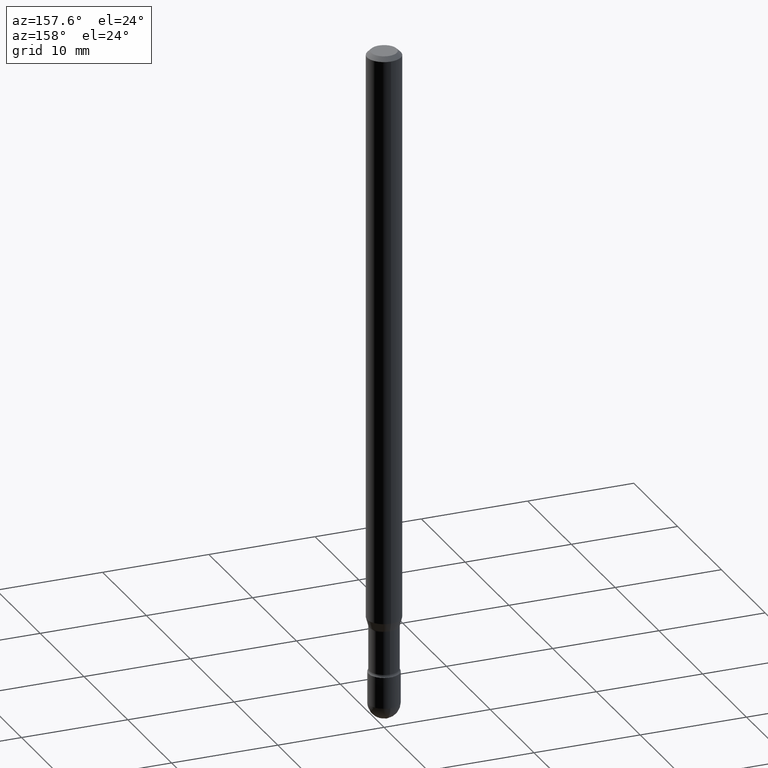
[diagram: clean part render]
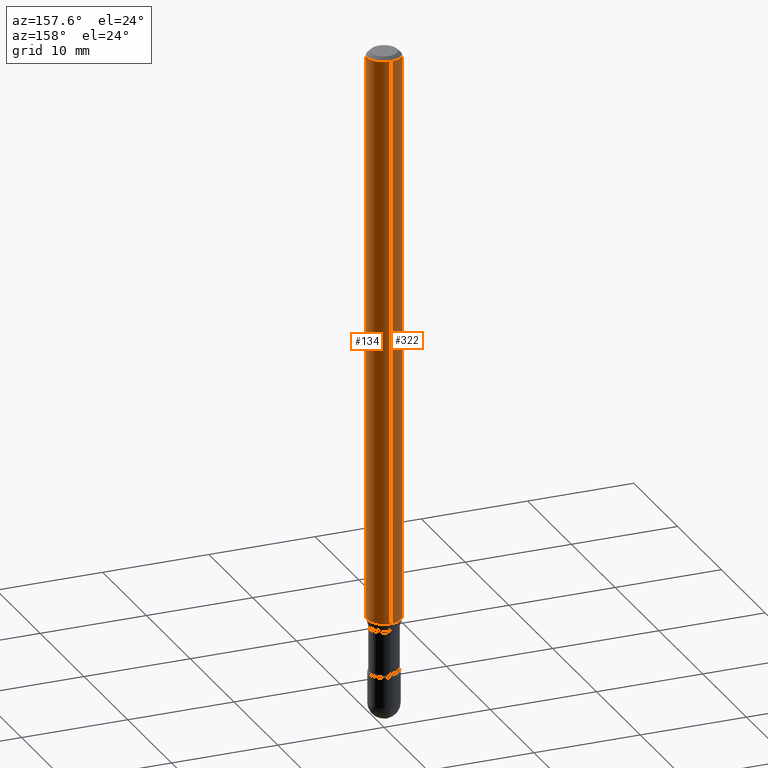
[diagram: same view with one multi-face feature highlighted, each face labeled with its STEP entity id]
A machine part, auxiliary view. The highlighted faces form ONE feature: a constant-radius fillet chain: 2 tangent blend faces with common blend radius 1.5875 mm. The faces share edges in the B-rep.
Their STEP definitions:
[1] entity #134 (Cylinder):
#16 = CARTESIAN_POINT ( 'NONE',  ( 4.440892098500625669E-16, 0.06250000000000000000, 2.598587908571805659E-16 ) ) ;
#35 = EDGE_CURVE ( 'NONE', #161, #460, #319, .T. ) ;
#37 = EDGE_LOOP ( 'NONE', ( #340, #245, #394, #109 ) ) ;
#40 = VERTEX_POINT ( 'NONE', #473 ) ;
#47 = DIRECTION ( 'NONE',  ( -6.982962677686265922E-15, -1.000000000000000000, 3.491433728545047563E-15 ) ) ;
#53 = AXIS2_PLACEMENT_3D ( 'NONE', #261, #265, #47 ) ;
#68 = VECTOR ( 'NONE', #455, 39.37007874015748143 ) ;
#82 = DIRECTION ( 'NONE',  ( -2.445502052278605935E-29, 3.491433728545047957E-15, 1.000000000000000000 ) ) ;
#109 = ORIENTED_EDGE ( 'NONE', *, *, #195, .F. ) ;
#134 = ADVANCED_FACE ( 'NONE', ( #362 ), #482, .T. ) ;
#149 = DIRECTION ( 'NONE',  ( -6.982962677686265922E-15, -1.000000000000000000, 4.370956789862821150E-15 ) ) ;
#161 = VERTEX_POINT ( 'NONE', #227 ) ;
#168 = CARTESIAN_POINT ( 'NONE',  ( -4.364351673553395060E-16, -0.06250000000000739686, -2.123464170676042873 ) ) ;
#195 = EDGE_CURVE ( 'NONE', #555, #161, #485, .T. ) ;
#211 = CARTESIAN_POINT ( 'NONE',  ( 4.440892098501148782E-16, 0.06249999999999995143, -0.01500000000000030129 ) ) ;
#227 = CARTESIAN_POINT ( 'NONE',  ( -4.364351673553912750E-16, -0.06250000000000005551, -0.01499999999999986587 ) ) ;
#245 = ORIENTED_EDGE ( 'NONE', *, *, #282, .T. ) ;
#246 = AXIS2_PLACEMENT_3D ( 'NONE', #325, #487, #149 ) ;
#248 = DIRECTION ( 'NONE',  ( -6.982962677686265922E-15, -1.000000000000000000, 3.483106191921935554E-15 ) ) ;
#261 = CARTESIAN_POINT ( 'NONE',  ( -1.169113584055446105E-44, 1.669184350826100908E-30, 4.780733988912460139E-16 ) ) ;
#265 = DIRECTION ( 'NONE',  ( -2.445502052278605655E-29, 3.491433728545047957E-15, 1.000000000000000000 ) ) ;
#282 = EDGE_CURVE ( 'NONE', #40, #460, #330, .T. ) ;
#319 = CIRCLE ( 'NONE', #476, 0.06250000000000000000 ) ;
#325 = CARTESIAN_POINT ( 'NONE',  ( 5.192935987328350802E-29, -7.413934426855275565E-15, -2.123464170676042873 ) ) ;
#330 = LINE ( 'NONE', #16, #68 ) ;
#340 = ORIENTED_EDGE ( 'NONE', *, *, #343, .T. ) ;
#342 = CARTESIAN_POINT ( 'NONE',  ( 3.668253078417928609E-31, -5.237150592817601025E-17, -0.01500000000000008271 ) ) ;
#343 = EDGE_CURVE ( 'NONE', #555, #40, #556, .T. ) ;
#348 = VECTOR ( 'NONE', #82, 39.37007874015748143 ) ;
#362 = FACE_OUTER_BOUND ( 'NONE', #37, .T. ) ;
#394 = ORIENTED_EDGE ( 'NONE', *, *, #35, .F. ) ;
#455 = DIRECTION ( 'NONE',  ( -2.445502052278605935E-29, 3.491433728545047957E-15, 1.000000000000000000 ) ) ;
#460 = VERTEX_POINT ( 'NONE', #211 ) ;
#473 = CARTESIAN_POINT ( 'NONE',  ( 4.440892098501145824E-16, 0.06249999999999260314, -2.123464170676043317 ) ) ;
#476 = AXIS2_PLACEMENT_3D ( 'NONE', #342, #514, #248 ) ;
#482 = CYLINDRICAL_SURFACE ( 'NONE', #53, 0.06250000000000000000 ) ;
#485 = LINE ( 'NONE', #486, #348 ) ;
#486 = CARTESIAN_POINT ( 'NONE',  ( -4.364351673553916201E-16, -0.06250000000000000000, 6.962880069253115605E-16 ) ) ;
#487 = DIRECTION ( 'NONE',  ( -2.445502052278605655E-29, 3.491433728545047957E-15, 1.000000000000000000 ) ) ;
#514 = DIRECTION ( 'NONE',  ( -2.445502052278605655E-29, 3.491433728545047957E-15, 1.000000000000000000 ) ) ;
#555 = VERTEX_POINT ( 'NONE', #168 ) ;
#556 = CIRCLE ( 'NONE', #246, 0.06250000000000000000 ) ;
[2] entity #322 (Cylinder):
#16 = CARTESIAN_POINT ( 'NONE',  ( 4.440892098500625669E-16, 0.06250000000000000000, 2.598587908571805659E-16 ) ) ;
#31 = EDGE_CURVE ( 'NONE', #40, #555, #309, .T. ) ;
#40 = VERTEX_POINT ( 'NONE', #473 ) ;
#64 = CARTESIAN_POINT ( 'NONE',  ( 3.668253078417928609E-31, -5.237150592817601025E-17, -0.01500000000000008271 ) ) ;
#68 = VECTOR ( 'NONE', #455, 39.37007874015748143 ) ;
#82 = DIRECTION ( 'NONE',  ( -2.445502052278605935E-29, 3.491433728545047957E-15, 1.000000000000000000 ) ) ;
#96 = CIRCLE ( 'NONE', #175, 0.06250000000000000000 ) ;
#130 = AXIS2_PLACEMENT_3D ( 'NONE', #141, #452, #275 ) ;
#141 = CARTESIAN_POINT ( 'NONE',  ( -1.169113584055446105E-44, 1.669184350826100908E-30, 4.780733988912460139E-16 ) ) ;
#159 = DIRECTION ( 'NONE',  ( -2.445502052278605655E-29, 3.491433728545047957E-15, 1.000000000000000000 ) ) ;
#161 = VERTEX_POINT ( 'NONE', #227 ) ;
#168 = CARTESIAN_POINT ( 'NONE',  ( -4.364351673553395060E-16, -0.06250000000000739686, -2.123464170676042873 ) ) ;
#175 = AXIS2_PLACEMENT_3D ( 'NONE', #64, #504, #208 ) ;
#195 = EDGE_CURVE ( 'NONE', #555, #161, #485, .T. ) ;
#208 = DIRECTION ( 'NONE',  ( -6.982962677686265922E-15, -1.000000000000000000, 3.483106191921935554E-15 ) ) ;
#211 = CARTESIAN_POINT ( 'NONE',  ( 4.440892098501148782E-16, 0.06249999999999995143, -0.01500000000000030129 ) ) ;
#227 = CARTESIAN_POINT ( 'NONE',  ( -4.364351673553912750E-16, -0.06250000000000005551, -0.01499999999999986587 ) ) ;
#240 = EDGE_LOOP ( 'NONE', ( #560, #335, #271, #552 ) ) ;
#271 = ORIENTED_EDGE ( 'NONE', *, *, #195, .T. ) ;
#275 = DIRECTION ( 'NONE',  ( -6.982962677686265922E-15, -1.000000000000000000, 3.491433728545047563E-15 ) ) ;
#282 = EDGE_CURVE ( 'NONE', #40, #460, #330, .T. ) ;
#290 = DIRECTION ( 'NONE',  ( -6.982962677686265922E-15, -1.000000000000000000, 4.370956789862821150E-15 ) ) ;
#309 = CIRCLE ( 'NONE', #499, 0.06250000000000000000 ) ;
#322 = ADVANCED_FACE ( 'NONE', ( #456 ), #420, .T. ) ;
#330 = LINE ( 'NONE', #16, #68 ) ;
#335 = ORIENTED_EDGE ( 'NONE', *, *, #31, .T. ) ;
#348 = VECTOR ( 'NONE', #82, 39.37007874015748143 ) ;
#420 = CYLINDRICAL_SURFACE ( 'NONE', #130, 0.06250000000000000000 ) ;
#452 = DIRECTION ( 'NONE',  ( -2.445502052278605655E-29, 3.491433728545047957E-15, 1.000000000000000000 ) ) ;
#455 = DIRECTION ( 'NONE',  ( -2.445502052278605935E-29, 3.491433728545047957E-15, 1.000000000000000000 ) ) ;
#456 = FACE_OUTER_BOUND ( 'NONE', #240, .T. ) ;
#460 = VERTEX_POINT ( 'NONE', #211 ) ;
#473 = CARTESIAN_POINT ( 'NONE',  ( 4.440892098501145824E-16, 0.06249999999999260314, -2.123464170676043317 ) ) ;
#485 = LINE ( 'NONE', #486, #348 ) ;
#486 = CARTESIAN_POINT ( 'NONE',  ( -4.364351673553916201E-16, -0.06250000000000000000, 6.962880069253115605E-16 ) ) ;
#495 = EDGE_CURVE ( 'NONE', #460, #161, #96, .T. ) ;
#499 = AXIS2_PLACEMENT_3D ( 'NONE', #549, #159, #290 ) ;
#504 = DIRECTION ( 'NONE',  ( -2.445502052278605655E-29, 3.491433728545047957E-15, 1.000000000000000000 ) ) ;
#549 = CARTESIAN_POINT ( 'NONE',  ( 5.192935987328350802E-29, -7.413934426855275565E-15, -2.123464170676042873 ) ) ;
#552 = ORIENTED_EDGE ( 'NONE', *, *, #495, .F. ) ;
#555 = VERTEX_POINT ( 'NONE', #168 ) ;
#560 = ORIENTED_EDGE ( 'NONE', *, *, #282, .F. ) ;